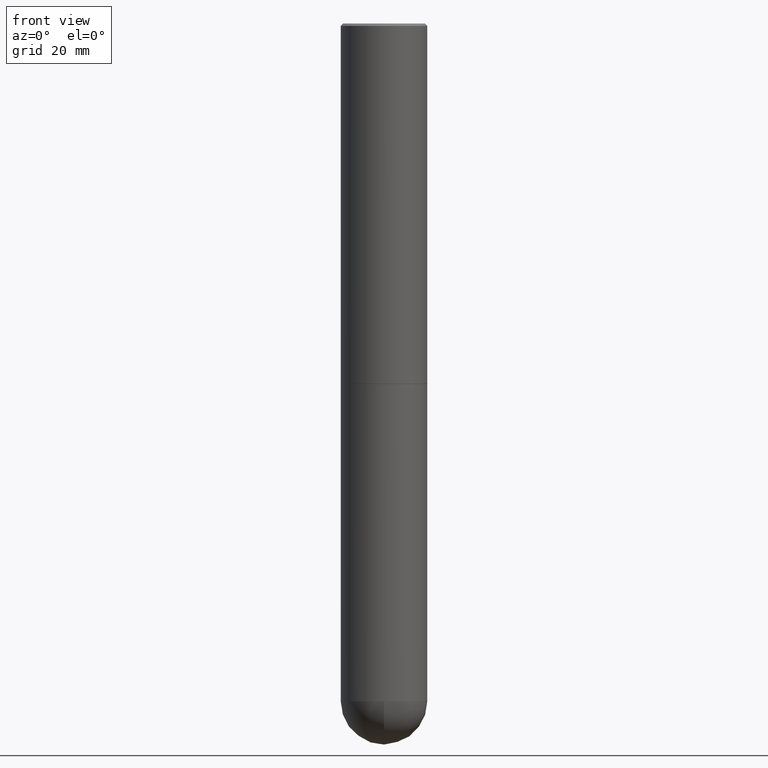
[diagram: clean part render]
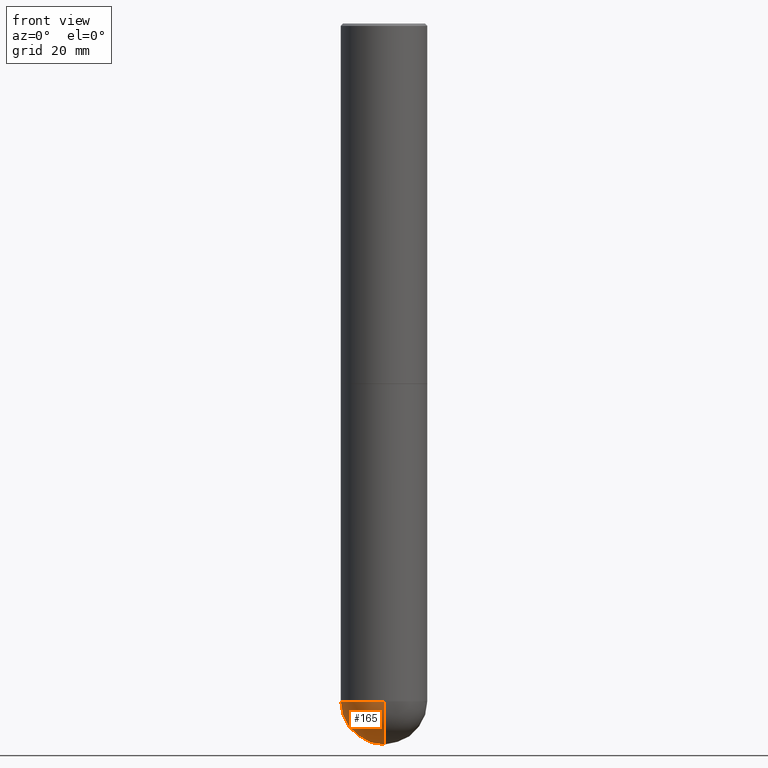
[diagram: same view with one face highlighted and labeled with its STEP entity id]
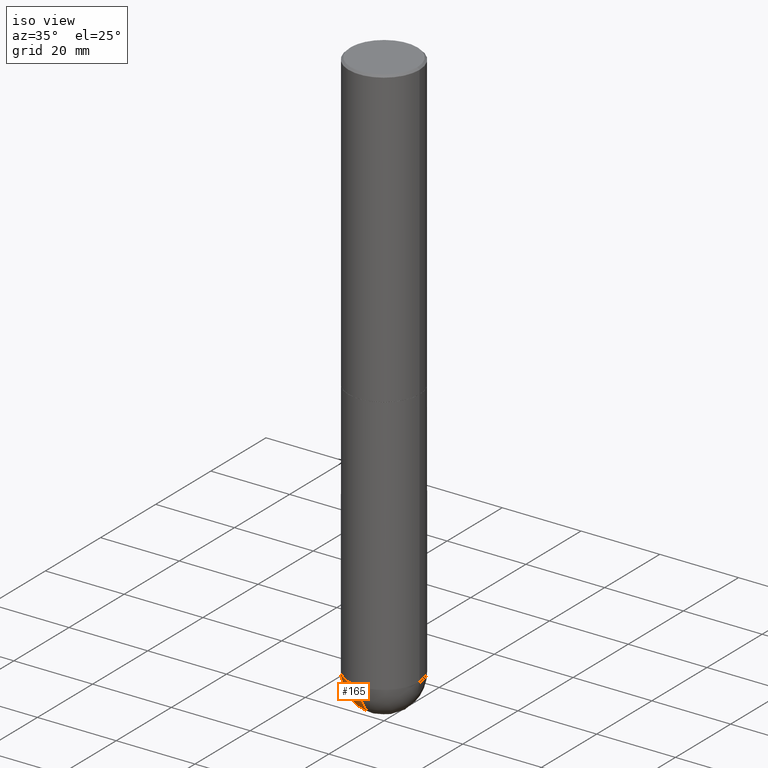
[diagram: same view with one face highlighted and labeled with its STEP entity id]
A machine part, front view. The second image highlights one B-rep face of the part: STEP entity #165.
A second angle (iso view) of the same face is appended — the face is thin or edge-on in the first view.
In plain terms, the highlighted spherical surface has radius 9.0005 mm.
Its self-contained STEP definition (entity closure, byte-faithful):
#7 = EDGE_CURVE ( 'NONE', #71, #366, #407, .T. ) ;
#31 = CIRCLE ( 'NONE', #157, 0.3543499999999999428 ) ;
#47 = CARTESIAN_POINT ( 'NONE',  ( 1.357516416345461774E-28, -1.938173663411912545E-14, -5.551149999999999807 ) ) ;
#57 = CARTESIAN_POINT ( 'NONE',  ( 1.412574766574097249E-28, -2.107142773501435227E-14, -5.905499999999999972 ) ) ;
#60 = DIRECTION ( 'NONE',  ( 1.000000000000000000, -6.982962677686261189E-15, 0.000000000000000000 ) ) ;
#71 = VERTEX_POINT ( 'NONE', #57 ) ;
#89 = DIRECTION ( 'NONE',  ( 1.000000000000000000, -6.982962677686261189E-15, 0.000000000000000000 ) ) ;
#91 = CIRCLE ( 'NONE', #197, 0.3543500000000002204 ) ;
#104 = ORIENTED_EDGE ( 'NONE', *, *, #149, .F. ) ;
#109 = CARTESIAN_POINT ( 'NONE',  ( 1.357516416345461774E-28, -1.938173663411912545E-14, -5.551149999999999807 ) ) ;
#118 = EDGE_CURVE ( 'NONE', #272, #201, #411, .T. ) ;
#124 = AXIS2_PLACEMENT_3D ( 'NONE', #368, #253, #180 ) ;
#133 = EDGE_CURVE ( 'NONE', #71, #272, #91, .T. ) ;
#138 = EDGE_LOOP ( 'NONE', ( #236, #267, #104, #382 ) ) ;
#141 = CARTESIAN_POINT ( 'NONE',  ( 1.324404438554073486E-28, -1.985591900225917417E-14, -5.551149999999999807 ) ) ;
#149 = EDGE_CURVE ( 'NONE', #201, #366, #31, .T. ) ;
#150 = CARTESIAN_POINT ( 'NONE',  ( 2.474412824838263195E-15, 0.3543499999999804584, -5.551150000000000695 ) ) ;
#156 = FACE_OUTER_BOUND ( 'NONE', #138, .T. ) ;
#157 = AXIS2_PLACEMENT_3D ( 'NONE', #47, #321, #60 ) ;
#165 = ADVANCED_FACE ( 'NONE', ( #156 ), #188, .T. ) ;
#180 = DIRECTION ( 'NONE',  ( 6.982962677686265922E-15, 1.000000000000000000, -3.083784951222533328E-15 ) ) ;
#188 = SPHERICAL_SURFACE ( 'NONE', #124, 0.3543500000000002204 ) ;
#191 = AXIS2_PLACEMENT_3D ( 'NONE', #373, #390, #216 ) ;
#197 = AXIS2_PLACEMENT_3D ( 'NONE', #141, #279, #243 ) ;
#201 = VERTEX_POINT ( 'NONE', #215 ) ;
#215 = CARTESIAN_POINT ( 'NONE',  ( -0.3543499999999999428, -1.232770860749472642E-14, -5.551149999999999807 ) ) ;
#216 = DIRECTION ( 'NONE',  ( -7.105427357601001070E-15, -1.000000000000000000, 0.000000000000000000 ) ) ;
#236 = ORIENTED_EDGE ( 'NONE', *, *, #133, .F. ) ;
#243 = DIRECTION ( 'NONE',  ( 6.982962677686265133E-15, 1.000000000000000000, 0.000000000000000000 ) ) ;
#253 = DIRECTION ( 'NONE',  ( -1.000000000000000000, 6.982962677686265922E-15, -4.883557194083112340E-29 ) ) ;
#267 = ORIENTED_EDGE ( 'NONE', *, *, #7, .T. ) ;
#272 = VERTEX_POINT ( 'NONE', #150 ) ;
#279 = DIRECTION ( 'NONE',  ( 1.000000000000000000, -6.982962677686265922E-15, 4.883557194083112340E-29 ) ) ;
#305 = DIRECTION ( 'NONE',  ( -2.445468806185136597E-29, 3.491481338843145583E-15, 1.000000000000000000 ) ) ;
#313 = AXIS2_PLACEMENT_3D ( 'NONE', #109, #305, #89 ) ;
#321 = DIRECTION ( 'NONE',  ( -2.445468806185136597E-29, 3.491481338843145583E-15, 1.000000000000000000 ) ) ;
#350 = CARTESIAN_POINT ( 'NONE',  ( -2.517808184165781285E-15, -0.3543500000000196493, -5.551149999999998919 ) ) ;
#366 = VERTEX_POINT ( 'NONE', #350 ) ;
#368 = CARTESIAN_POINT ( 'NONE',  ( 1.324404438554073486E-28, -1.985591900225917417E-14, -5.551149999999999807 ) ) ;
#373 = CARTESIAN_POINT ( 'NONE',  ( 1.324404438554073486E-28, -1.985591900225917417E-14, -5.551149999999999807 ) ) ;
#382 = ORIENTED_EDGE ( 'NONE', *, *, #118, .F. ) ;
#390 = DIRECTION ( 'NONE',  ( -1.000000000000000000, 7.105427357601001070E-15, -4.926315508542082329E-29 ) ) ;
#407 = CIRCLE ( 'NONE', #191, 0.3543500000000002204 ) ;
#411 = CIRCLE ( 'NONE', #313, 0.3543499999999999428 ) ;